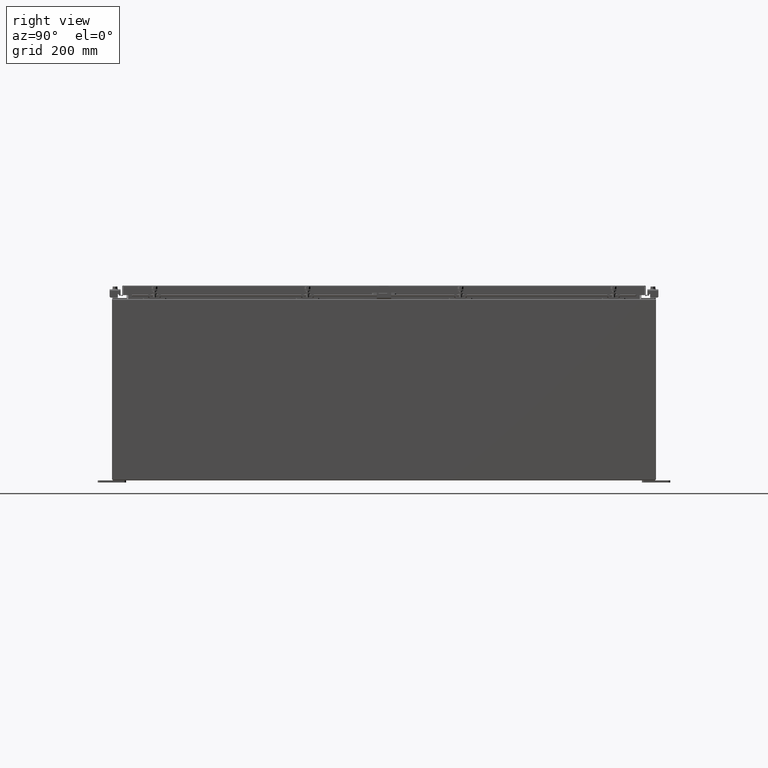
[diagram: clean part render]
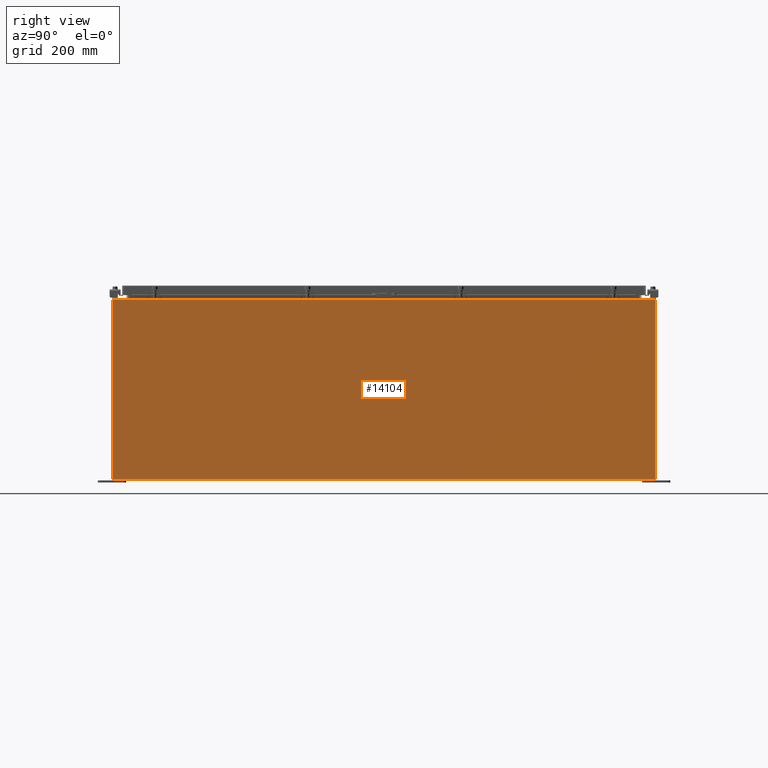
[diagram: same view with one face highlighted and labeled with its STEP entity id]
A machine part, right view. The second image highlights one B-rep face of the part: STEP entity #14104.
In plain terms, the highlighted planar face has unit normal (-1, 0, 0).
Its self-contained STEP definition (entity closure, byte-faithful):
#1537 = DIRECTION ( 'NONE',  ( 3.430827668758847500E-015, 0.0000000000000000000, 1.000000000000000000 ) ) ;
#2877 = CARTESIAN_POINT ( 'NONE',  ( 18.00000000000005000, -23.92529999999998900, 15.83760000000000200 ) ) ;
#3372 = ORIENTED_EDGE ( 'NONE', *, *, #24958, .T. ) ;
#4710 = ORIENTED_EDGE ( 'NONE', *, *, #26238, .F. ) ;
#5753 = CARTESIAN_POINT ( 'NONE',  ( 17.99999999999999600, -23.92529999999998900, 0.01299999999999984700 ) ) ;
#6249 = DIRECTION ( 'NONE',  ( 3.430827668758846700E-015, 0.0000000000000000000, 1.000000000000000000 ) ) ;
#9168 = CARTESIAN_POINT ( 'NONE',  ( 17.99999999999999600, -23.92529999999998900, -6.201571169367080700E-014 ) ) ;
#10318 = PLANE ( 'NONE',  #10493 ) ;
#10474 = VECTOR ( 'NONE', #1537, 39.37007874015748100 ) ;
#10493 = AXIS2_PLACEMENT_3D ( 'NONE', #27217, #31411, #6249 ) ;
#14074 = DIRECTION ( 'NONE',  ( -1.566960444969418600E-031, -1.000000000000000000, -4.567295697298285000E-017 ) ) ;
#14104 = ADVANCED_FACE ( 'NONE', ( #15813 ), #10318, .F. ) ;
#14278 = ORIENTED_EDGE ( 'NONE', *, *, #29736, .T. ) ;
#14401 = EDGE_CURVE ( 'NONE', #33769, #38480, #30849, .T. ) ;
#15813 = FACE_OUTER_BOUND ( 'NONE', #43585, .T. ) ;
#17463 = VECTOR ( 'NONE', #18606, 39.37007874015748100 ) ;
#18606 = DIRECTION ( 'NONE',  ( -0.0000000000000000000, -1.000000000000000000, -0.0000000000000000000 ) ) ;
#23692 = VECTOR ( 'NONE', #38458, 39.37007874015748100 ) ;
#24958 = EDGE_CURVE ( 'NONE', #25001, #33769, #28624, .T. ) ;
#25001 = VERTEX_POINT ( 'NONE', #47876 ) ;
#26238 = EDGE_CURVE ( 'NONE', #26556, #38480, #37614, .T. ) ;
#26556 = VERTEX_POINT ( 'NONE', #50800 ) ;
#27217 = CARTESIAN_POINT ( 'NONE',  ( 17.99999999999999600, 0.0000000000000000000, -6.201571169367080700E-014 ) ) ;
#28624 = LINE ( 'NONE', #35081, #17463 ) ;
#29736 = EDGE_CURVE ( 'NONE', #26556, #25001, #53489, .T. ) ;
#30849 = LINE ( 'NONE', #9168, #23692 ) ;
#31411 = DIRECTION ( 'NONE',  ( -1.000000000000000000, 0.0000000000000000000, 3.430827668758846700E-015 ) ) ;
#33769 = VERTEX_POINT ( 'NONE', #2877 ) ;
#34281 = ORIENTED_EDGE ( 'NONE', *, *, #14401, .T. ) ;
#35081 = CARTESIAN_POINT ( 'NONE',  ( 18.00000000000005000, 23.92529999999998900, 15.83760000000001400 ) ) ;
#37614 = LINE ( 'NONE', #5753, #48604 ) ;
#38458 = DIRECTION ( 'NONE',  ( -3.430827668758847500E-015, 0.0000000000000000000, -1.000000000000000000 ) ) ;
#38480 = VERTEX_POINT ( 'NONE', #46856 ) ;
#43585 = EDGE_LOOP ( 'NONE', ( #3372, #34281, #4710, #14278 ) ) ;
#46856 = CARTESIAN_POINT ( 'NONE',  ( 17.99999999999999600, -23.92529999999998900, 0.01299999999999898300 ) ) ;
#47876 = CARTESIAN_POINT ( 'NONE',  ( 18.00000000000005000, 23.92529999999998600, 15.83760000000001400 ) ) ;
#48604 = VECTOR ( 'NONE', #14074, 39.37007874015748100 ) ;
#50800 = CARTESIAN_POINT ( 'NONE',  ( 17.99999999999999600, 23.92529999999998600, 0.01300000000000203200 ) ) ;
#51299 = CARTESIAN_POINT ( 'NONE',  ( 17.99999999999999600, 23.92529999999998900, -6.201571169367080700E-014 ) ) ;
#53489 = LINE ( 'NONE', #51299, #10474 ) ;